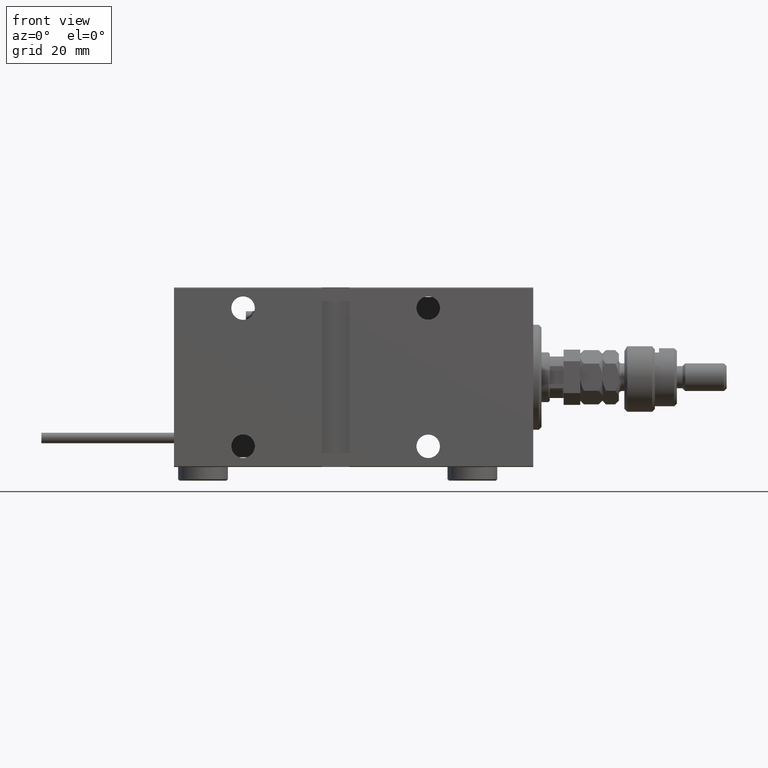
[diagram: clean part render]
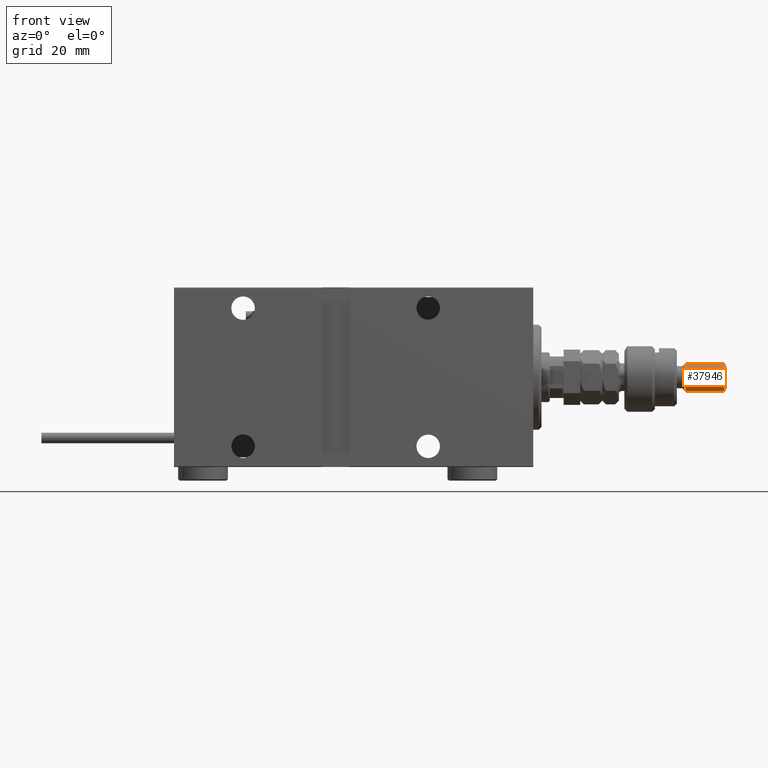
[diagram: same view with one face highlighted and labeled with its STEP entity id]
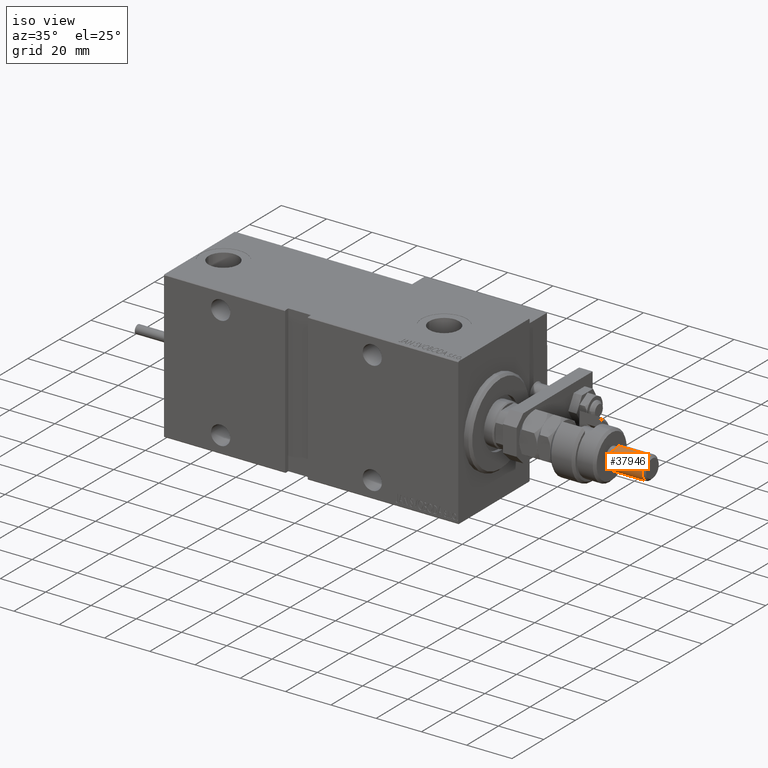
[diagram: same view with one face highlighted and labeled with its STEP entity id]
A machine part, front view. The second image highlights one B-rep face of the part: STEP entity #37946.
A second angle (iso view) of the same face is appended — the face is thin or edge-on in the first view.
In plain terms, the highlighted cylindrical surface (edge-blend (fillet) strip) has radius 5 mm, axis along (-1, -0, 0).
Its self-contained STEP definition (entity closure, byte-faithful):
#264 = LINE ( 'NONE', #42212, #50498 ) ;
#633 = DIRECTION ( 'NONE',  ( -0.000000000000000000, -0.000000000000000000, -1.000000000000000000 ) ) ;
#1714 = EDGE_CURVE ( 'NONE', #34938, #9371, #49188, .T. ) ;
#6041 = EDGE_CURVE ( 'NONE', #34938, #20290, #16924, .T. ) ;
#6695 = CARTESIAN_POINT ( 'NONE',  ( 5.000000000000000888, 6.123233995736767268E-16, 37.00000000000000000 ) ) ;
#7401 = CIRCLE ( 'NONE', #14424, 5.000000000000000888 ) ;
#9371 = VERTEX_POINT ( 'NONE', #11765 ) ;
#11765 = CARTESIAN_POINT ( 'NONE',  ( 5.000000000000000888, 6.123233995736767268E-16, 21.99999999999999289 ) ) ;
#13607 = ORIENTED_EDGE ( 'NONE', *, *, #29186, .T. ) ;
#14424 = AXIS2_PLACEMENT_3D ( 'NONE', #39866, #18485, #17951 ) ;
#15157 = AXIS2_PLACEMENT_3D ( 'NONE', #29436, #25568, #34091 ) ;
#16924 = CIRCLE ( 'NONE', #15157, 5.000000000000000888 ) ;
#16999 = DIRECTION ( 'NONE',  ( -0.000000000000000000, -0.000000000000000000, -1.000000000000000000 ) ) ;
#17902 = CYLINDRICAL_SURFACE ( 'NONE', #21106, 5.000000000000000888 ) ;
#17951 = DIRECTION ( 'NONE',  ( 1.000000000000000000, 0.000000000000000000, 0.000000000000000000 ) ) ;
#18174 = DIRECTION ( 'NONE',  ( -1.000000000000000000, 0.000000000000000000, 0.000000000000000000 ) ) ;
#18485 = DIRECTION ( 'NONE',  ( -0.000000000000000000, -0.000000000000000000, 1.000000000000000000 ) ) ;
#19862 = DIRECTION ( 'NONE',  ( -0.000000000000000000, -0.000000000000000000, -1.000000000000000000 ) ) ;
#20290 = VERTEX_POINT ( 'NONE', #46256 ) ;
#21106 = AXIS2_PLACEMENT_3D ( 'NONE', #51089, #633, #18174 ) ;
#25568 = DIRECTION ( 'NONE',  ( 0.000000000000000000, 0.000000000000000000, -1.000000000000000000 ) ) ;
#27287 = EDGE_LOOP ( 'NONE', ( #40977, #38513, #13607, #38256 ) ) ;
#29186 = EDGE_CURVE ( 'NONE', #20290, #41934, #264, .T. ) ;
#29436 = CARTESIAN_POINT ( 'NONE',  ( 0.000000000000000000, 0.000000000000000000, 36.00000000000000711 ) ) ;
#34091 = DIRECTION ( 'NONE',  ( 1.000000000000000000, 0.000000000000000000, 0.000000000000000000 ) ) ;
#34938 = VERTEX_POINT ( 'NONE', #53560 ) ;
#37933 = FACE_OUTER_BOUND ( 'NONE', #27287, .T. ) ;
#37946 = ADVANCED_FACE ( 'NONE', ( #37933 ), #17902, .T. ) ;
#38256 = ORIENTED_EDGE ( 'NONE', *, *, #49741, .T. ) ;
#38513 = ORIENTED_EDGE ( 'NONE', *, *, #6041, .T. ) ;
#39866 = CARTESIAN_POINT ( 'NONE',  ( 0.000000000000000000, 0.000000000000000000, 21.99999999999999289 ) ) ;
#40977 = ORIENTED_EDGE ( 'NONE', *, *, #1714, .F. ) ;
#41239 = VECTOR ( 'NONE', #19862, 1000.000000000000000 ) ;
#41934 = VERTEX_POINT ( 'NONE', #53631 ) ;
#42212 = CARTESIAN_POINT ( 'NONE',  ( -5.000000000000000888, 0.000000000000000000, 37.00000000000000000 ) ) ;
#46256 = CARTESIAN_POINT ( 'NONE',  ( -5.000000000000000888, 0.000000000000000000, 36.00000000000000711 ) ) ;
#49188 = LINE ( 'NONE', #6695, #41239 ) ;
#49741 = EDGE_CURVE ( 'NONE', #41934, #9371, #7401, .T. ) ;
#50498 = VECTOR ( 'NONE', #16999, 1000.000000000000000 ) ;
#51089 = CARTESIAN_POINT ( 'NONE',  ( 0.000000000000000000, 0.000000000000000000, 37.00000000000000000 ) ) ;
#53560 = CARTESIAN_POINT ( 'NONE',  ( 5.000000000000000888, 6.123233995736767268E-16, 36.00000000000000711 ) ) ;
#53631 = CARTESIAN_POINT ( 'NONE',  ( -5.000000000000000888, 0.000000000000000000, 21.99999999999999289 ) ) ;